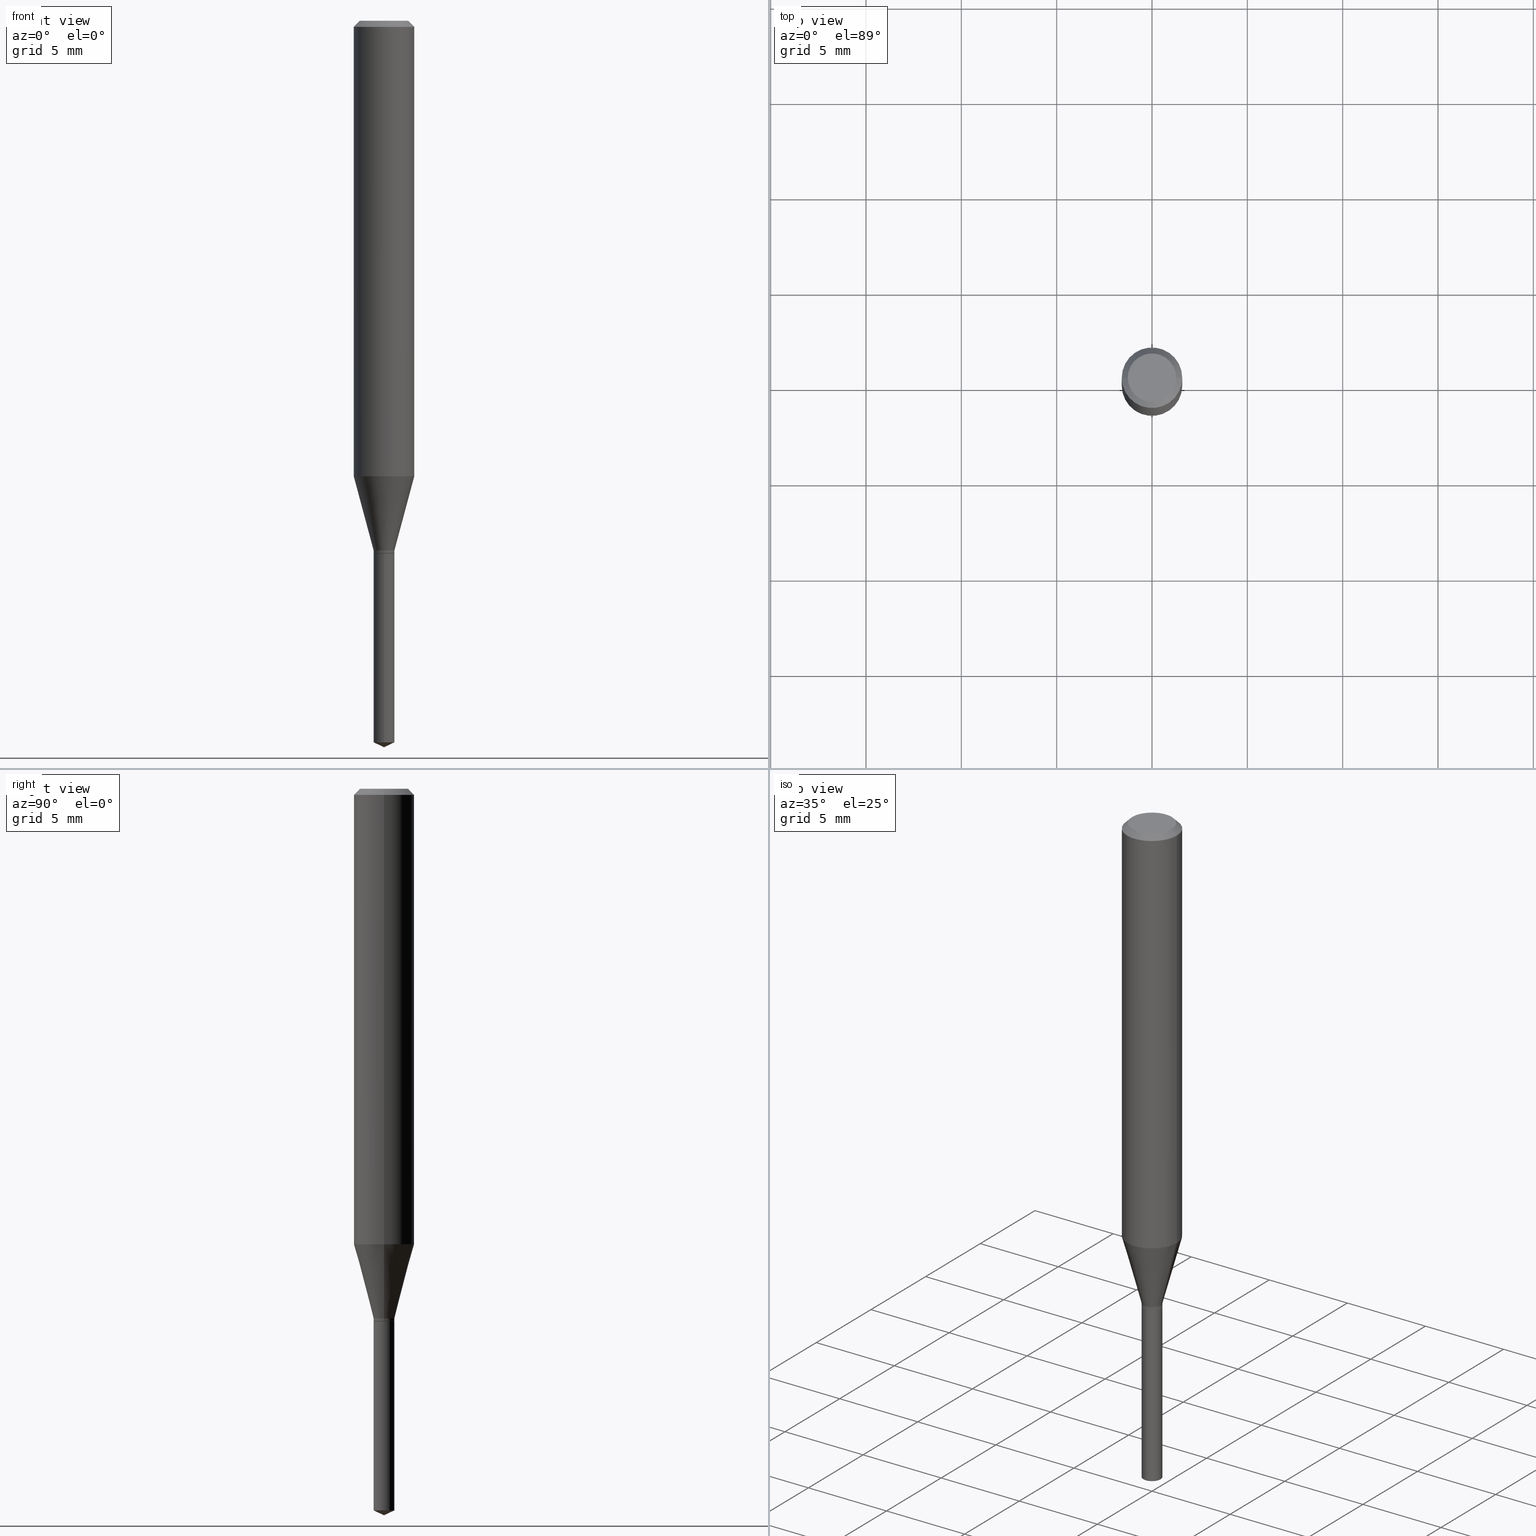
[diagram: canonical four-view strip — front | top / right | iso, engineering-drawing reading convention]
A machine part, canonical four-view strip (front | top / right | iso — engineering-drawing reading convention). The complete STEP part file that produces these views, byte-faithful:
ISO-10303-21;
HEADER;
FILE_DESCRIPTION (( 'STEP AP203' ),
    '1' );
FILE_NAME ('07156.STEP',
    '2024-04-23T19:50:09',
    ( '' ),
    ( '' ),
    'SwSTEP 2.0',
    'SolidWorks 2023',
    '' );
FILE_SCHEMA (( 'CONFIG_CONTROL_DESIGN' ));
ENDSEC;

DATA;
#1 = ORIENTED_EDGE ( 'NONE', *, *, #160, .T. ) ;
#2 = DATE_AND_TIME ( #42, #296 ) ;
#3 = CARTESIAN_POINT ( 'NONE',  ( 0.02150000000000000522, -3.989017429628293427E-15, -1.099499999999999922 ) ) ;
#4 = CONICAL_SURFACE ( 'NONE', #144, 0.02099999999999999784, 0.7853981633974184140 ) ;
#5 = CC_DESIGN_APPROVAL ( #105, ( #119 ) ) ;
#6 = EDGE_CURVE ( 'NONE', #396, #211, #80, .T. ) ;
#7 = CARTESIAN_POINT ( 'NONE',  ( 0.000000000000000000, 0.000000000000000000, 0.000000000000000000 ) ) ;
#8 = CARTESIAN_POINT ( 'NONE',  ( 0.02150000000000000175, -3.968068541595235384E-15, -1.093500000000000139 ) ) ;
#9 = ORIENTED_EDGE ( 'NONE', *, *, #22, .F. ) ;
#10 = DIRECTION ( 'NONE',  ( -6.982962677686265922E-15, -1.000000000000000000, 0.000000000000000000 ) ) ;
#11 = ORIENTED_EDGE ( 'NONE', *, *, #358, .F. ) ;
#12 = CARTESIAN_POINT ( 'NONE',  ( 0.000000000000000000, 0.000000000000000000, 0.000000000000000000 ) ) ;
#13 = MANIFOLD_SOLID_BREP ( 'Body-Move/Copy2[2]', #228 ) ;
#14 = EDGE_CURVE ( 'NONE', #439, #485, #95, .T. ) ;
#15 = CIRCLE ( 'NONE', #373, 0.02150000000000000175 ) ;
#16 = ORIENTED_EDGE ( 'NONE', *, *, #237, .F. ) ;
#17 =( GEOMETRIC_REPRESENTATION_CONTEXT ( 3 ) GLOBAL_UNCERTAINTY_ASSIGNED_CONTEXT ( ( #148 ) ) GLOBAL_UNIT_ASSIGNED_CONTEXT ( ( #326, #101, #180 ) ) REPRESENTATION_CONTEXT ( 'NONE', 'WORKASPACE' ) );
#18 = CARTESIAN_POINT ( 'NONE',  ( 3.893286209682126177E-47, -5.558580879666067980E-33, -1.592040838891559689E-18 ) ) ;
#19 = ORIENTED_EDGE ( 'NONE', *, *, #358, .T. ) ;
#20 = LINE ( 'NONE', #213, #166 ) ;
#21 = EDGE_LOOP ( 'NONE', ( #44, #201, #318, #96 ) ) ;
#22 = EDGE_CURVE ( 'NONE', #407, #169, #294, .T. ) ;
#23 = DIRECTION ( 'NONE',  ( -1.000000000000000000, 6.982962677686265922E-15, -4.876176775795935793E-29 ) ) ;
#24 = CIRCLE ( 'NONE', #155, 0.02150000000000000175 ) ;
#25 = VECTOR ( 'NONE', #45, 39.37007874015748143 ) ;
#26 =( LENGTH_UNIT ( ) NAMED_UNIT ( * ) SI_UNIT ( $, .METRE. ) );
#27 = EDGE_LOOP ( 'NONE', ( #440, #210, #359, #288 ) ) ;
#28 = EDGE_LOOP ( 'NONE', ( #103, #53, #176, #64 ) ) ;
#29 = CARTESIAN_POINT ( 'NONE',  ( 2.690015686803650369E-29, -3.840629472727460101E-15, -1.100000000000000089 ) ) ;
#30 = APPROVAL ( #150, 'UNSPECIFIED' ) ;
#31 = CONICAL_SURFACE ( 'NONE', #72, 0.06250000000000000000, 0.7853981633974452814 ) ;
#32 = AXIS2_PLACEMENT_3D ( 'NONE', #70, #133, #282 ) ;
#33 = ADVANCED_FACE ( 'NONE', ( #479 ), #276, .T. ) ;
#34 = EDGE_LOOP ( 'NONE', ( #317, #319 ) ) ;
#35 = EDGE_CURVE ( 'NONE', #283, #396, #389, .T. ) ;
#36 = LINE ( 'NONE', #187, #480 ) ;
#37 = APPROVAL_STATUS ( 'not_yet_approved' ) ;
#38 = VECTOR ( 'NONE', #43, 39.37007874015748143 ) ;
#39 = ORIENTED_EDGE ( 'NONE', *, *, #263, .F. ) ;
#40 = DIRECTION ( 'NONE',  ( -2.445468806185136597E-29, 3.491481338843145583E-15, 1.000000000000000000 ) ) ;
#41 = DATE_AND_TIME ( #381, #206 ) ;
#42 = CALENDAR_DATE ( 2024, 23, 4 ) ;
#43 = DIRECTION ( 'NONE',  ( -2.445399690415121810E-29, 3.491580316559632610E-15, 1.000000000000000000 ) ) ;
#44 = ORIENTED_EDGE ( 'NONE', *, *, #63, .T. ) ;
#45 = DIRECTION ( 'NONE',  ( -2.445468806185136877E-29, 3.491481338843145188E-15, 1.000000000000000000 ) ) ;
#46 = VECTOR ( 'NONE', #229, 39.37007874015748143 ) ;
#47 = DESIGN_CONTEXT ( 'detailed design', #121, 'design' ) ;
#48 = CARTESIAN_POINT ( 'NONE',  ( -9.260740279983036507E-28, 1.322265303911854087E-13, 37.87007874015748143 ) ) ;
#49 = PERSON_AND_ORGANIZATION ( #185, #198 ) ;
#50 = VERTEX_POINT ( 'NONE', #293 ) ;
#51 = CYLINDRICAL_SURFACE ( 'NONE', #332, 0.06250000000000005551 ) ;
#52 = EDGE_CURVE ( 'NONE', #429, #151, #346, .T. ) ;
#53 = ORIENTED_EDGE ( 'NONE', *, *, #327, .T. ) ;
#54 = FACE_OUTER_BOUND ( 'NONE', #28, .T. ) ;
#55 = AXIS2_PLACEMENT_3D ( 'NONE', #168, #118, #356 ) ;
#56 = ORIENTED_EDGE ( 'NONE', *, *, #347, .F. ) ;
#57 = AXIS2_PLACEMENT_3D ( 'NONE', #360, #107, #472 ) ;
#58 = CYLINDRICAL_SURFACE ( 'NONE', #146, 0.02150000000000000522 ) ;
#59 = VERTEX_POINT ( 'NONE', #417 ) ;
#60 = FACE_OUTER_BOUND ( 'NONE', #473, .T. ) ;
#61 = ORIENTED_EDGE ( 'NONE', *, *, #35, .F. ) ;
#62 = DIMENSIONAL_EXPONENTS ( 1.000000000000000000, 0.000000000000000000, 0.000000000000000000, 0.000000000000000000, 0.000000000000000000, 0.000000000000000000, 0.000000000000000000 ) ;
#63 = EDGE_CURVE ( 'NONE', #485, #439, #488, .T. ) ;
#64 = ORIENTED_EDGE ( 'NONE', *, *, #160, .F. ) ;
#65 = CARTESIAN_POINT ( 'NONE',  ( -0.02150000000000000522, -3.675642599853087506E-15, -1.099499999999999922 ) ) ;
#66 = ORIENTED_EDGE ( 'NONE', *, *, #327, .F. ) ;
#67 = AXIS2_PLACEMENT_3D ( 'NONE', #413, #448, #487 ) ;
#68 = AXIS2_PLACEMENT_3D ( 'NONE', #29, #253, #441 ) ;
#69 = DIRECTION ( 'NONE',  ( -2.445468806185136597E-29, 3.491481338843145583E-15, 1.000000000000000000 ) ) ;
#70 = CARTESIAN_POINT ( 'NONE',  ( 3.056836007731440539E-31, -4.364351673553960451E-17, -0.01250000000000008049 ) ) ;
#71 = CARTESIAN_POINT ( 'NONE',  ( -0.02150000000000000522, 1.527666881884215770E-16, -1.057571044404804875E-30 ) ) ;
#72 = AXIS2_PLACEMENT_3D ( 'NONE', #316, #200, #88 ) ;
#73 = DIRECTION ( 'NONE',  ( 1.000000000000000000, -6.982962677686265133E-15, 0.000000000000000000 ) ) ;
#74 = CC_DESIGN_SECURITY_CLASSIFICATION ( #97, ( #119 ) ) ;
#75 = EDGE_CURVE ( 'NONE', #485, #290, #108, .T. ) ;
#76 = APPLICATION_PROTOCOL_DEFINITION ( 'international standard', 'config_control_design', 1994, #451 ) ;
#77 = DIRECTION ( 'NONE',  ( 0.7071067811865453523, -7.319954787623248157E-15, -0.7071067811865496822 ) ) ;
#78 = PRODUCT_DEFINITION_SHAPE ( 'NONE', 'NONE',  #90 ) ;
#79 = DIRECTION ( 'NONE',  ( 1.000000000000000000, -6.982962677686267499E-15, 0.000000000000000000 ) ) ;
#80 = LINE ( 'NONE', #71, #46 ) ;
#81 = DIRECTION ( 'NONE',  ( 0.000000000000000000, 0.000000000000000000, 1.000000000000000000 ) ) ;
#82 = APPROVAL_PERSON_ORGANIZATION ( #336, #408, #266 ) ;
#83 = CALENDAR_DATE ( 2024, 23, 4 ) ;
#84 = CARTESIAN_POINT ( 'NONE',  ( -9.260740279983036507E-28, 1.322265303911854087E-13, 37.87007874015748143 ) ) ;
#85 = DATE_TIME_ROLE ( 'classification_date' ) ;
#86 = CARTESIAN_POINT ( 'NONE',  ( 0.06250000000000000000, -4.800786840909312308E-16, -0.01250000000000008049 ) ) ;
#87 = VERTEX_POINT ( 'NONE', #258 ) ;
#88 = DIRECTION ( 'NONE',  ( -1.000000000000000000, 6.982962677686266711E-15, 0.000000000000000000 ) ) ;
#89 = CIRCLE ( 'NONE', #313, 0.02150000000000000175 ) ;
#90 = PRODUCT_DEFINITION ( 'UNKNOWN', '', #119, #47 ) ;
#91 = DIRECTION ( 'NONE',  ( 1.000000000000000000, -6.982962677686265922E-15, 4.876176775795935232E-29 ) ) ;
#92 = CARTESIAN_POINT ( 'NONE',  ( -0.06250000000000000000, 3.927916506198521080E-16, -0.01250000000000008049 ) ) ;
#93 = DIRECTION ( 'NONE',  ( -2.445399690415121530E-29, 3.491580316559632610E-15, 1.000000000000000000 ) ) ;
#94 = EDGE_CURVE ( 'NONE', #151, #429, #355, .T. ) ;
#95 = CIRCLE ( 'NONE', #322, 0.06250000000000009714 ) ;
#96 = ORIENTED_EDGE ( 'NONE', *, *, #75, .F. ) ;
#97 = SECURITY_CLASSIFICATION ( '', '', #425 ) ;
#98 = CARTESIAN_POINT ( 'NONE',  ( 0.000000000000000000, 0.000000000000000000, 0.000000000000000000 ) ) ;
#99 = ADVANCED_FACE ( 'NONE', ( #339 ), #450, .T. ) ;
#100 = ORIENTED_EDGE ( 'NONE', *, *, #178, .T. ) ;
#101 =( NAMED_UNIT ( * ) PLANE_ANGLE_UNIT ( ) SI_UNIT ( $, .RADIAN. ) );
#102 = ORIENTED_EDGE ( 'NONE', *, *, #312, .F. ) ;
#103 = ORIENTED_EDGE ( 'NONE', *, *, #291, .F. ) ;
#104 = EDGE_LOOP ( 'NONE', ( #19, #1 ) ) ;
#105 = APPROVAL ( #268, 'UNSPECIFIED' ) ;
#106 = AXIS2_PLACEMENT_3D ( 'NONE', #424, #314, #91 ) ;
#107 = DIRECTION ( 'NONE',  ( -2.445468806185136597E-29, 3.491481338843145583E-15, 1.000000000000000000 ) ) ;
#108 = LINE ( 'NONE', #109, #410 ) ;
#109 = CARTESIAN_POINT ( 'NONE',  ( 0.06250000000000005551, -4.364351673553920638E-16, 3.047610484872462323E-30 ) ) ;
#110 = CARTESIAN_POINT ( 'NONE',  ( -0.06250000000000005551, 4.440892098500630106E-16, -3.074334431409318916E-30 ) ) ;
#111 = EDGE_CURVE ( 'NONE', #238, #211, #15, .T. ) ;
#112 = AXIS2_PLACEMENT_3D ( 'NONE', #265, #380, #113 ) ;
#113 = DIRECTION ( 'NONE',  ( 1.000000000000000000, -6.982962677686265133E-15, 0.000000000000000000 ) ) ;
#114 = PLANE ( 'NONE',  #134 ) ;
#115 = EDGE_CURVE ( 'NONE', #211, #439, #36, .T. ) ;
#116 = PERSON_AND_ORGANIZATION ( #185, #198 ) ;
#117 = CC_DESIGN_PERSON_AND_ORGANIZATION_ASSIGNMENT ( #193, #120, ( #97 ) ) ;
#118 = DIRECTION ( 'NONE',  ( -2.445468806185136597E-29, 3.491481338843145583E-15, 1.000000000000000000 ) ) ;
#119 = PRODUCT_DEFINITION_FORMATION_WITH_SPECIFIED_SOURCE ( 'ANY', '', #421, .NOT_KNOWN. ) ;
#120 = PERSON_AND_ORGANIZATION_ROLE ( 'classification_officer' ) ;
#121 = APPLICATION_CONTEXT ( 'configuration controlled 3d designs of mechanical parts and assemblies' ) ;
#122 = FACE_OUTER_BOUND ( 'NONE', #254, .T. ) ;
#123 = VERTEX_POINT ( 'NONE', #337 ) ;
#124 = DIRECTION ( 'NONE',  ( -2.445468806185136597E-29, 3.491481338843145583E-15, 1.000000000000000000 ) ) ;
#125 = EDGE_CURVE ( 'NONE', #211, #238, #222, .T. ) ;
#126 = ORIENTED_EDGE ( 'NONE', *, *, #52, .T. ) ;
#127 = CARTESIAN_POINT ( 'NONE',  ( -0.06250000000000000000, -1.219577062650251305E-15, -0.01250000000000008049 ) ) ;
#128 = VECTOR ( 'NONE', #77, 39.37007874015748143 ) ;
#129 = AXIS2_PLACEMENT_3D ( 'NONE', #292, #93, #320 ) ;
#130 = FACE_OUTER_BOUND ( 'NONE', #403, .T. ) ;
#131 = CYLINDRICAL_SURFACE ( 'NONE', #68, 0.02150000000000000175 ) ;
#132 = EDGE_LOOP ( 'NONE', ( #56, #126, #386, #16 ) ) ;
#133 = DIRECTION ( 'NONE',  ( -2.445468806185136597E-29, 3.491481338843145583E-15, 1.000000000000000000 ) ) ;
#134 = AXIS2_PLACEMENT_3D ( 'NONE', #460, #345, #422 ) ;
#135 = CARTESIAN_POINT ( 'NONE',  ( -0.06250000000000009714, -2.839599818415026848E-15, -0.9404859168896763100 ) ) ;
#136 = LINE ( 'NONE', #208, #175 ) ;
#137 = ORIENTED_EDGE ( 'NONE', *, *, #111, .T. ) ;
#138 = FACE_OUTER_BOUND ( 'NONE', #34, .T. ) ;
#139 = CONICAL_SURFACE ( 'NONE', #444, 84.42940631927278616, 1.134464013796308901 ) ;
#140 = VECTOR ( 'NONE', #243, 39.37007874015748143 ) ;
#141 = CARTESIAN_POINT ( 'NONE',  ( 2.299928972410130488E-29, -3.283689028265090253E-15, -0.9404859168896763100 ) ) ;
#142 = DIRECTION ( 'NONE',  ( 1.000000000000000000, -6.982962677686267499E-15, 0.000000000000000000 ) ) ;
#143 = LINE ( 'NONE', #110, #428 ) ;
#144 = AXIS2_PLACEMENT_3D ( 'NONE', #335, #232, #152 ) ;
#145 = DIRECTION ( 'NONE',  ( -2.445468806185136597E-29, 3.491481338843145583E-15, 1.000000000000000000 ) ) ;
#146 = AXIS2_PLACEMENT_3D ( 'NONE', #98, #443, #181 ) ;
#147 = CARTESIAN_POINT ( 'NONE',  ( 0.06250000000000000000, -4.724246415962602840E-16, -0.01250000000000008049 ) ) ;
#148 = UNCERTAINTY_MEASURE_WITH_UNIT (LENGTH_MEASURE( 1.000000000000000082E-05 ), #326, 'distance_accuracy_value', 'NONE');
#149 = DIRECTION ( 'NONE',  ( -0.2588190451025214611, 5.211531920934551042E-15, 0.9659258262890682012 ) ) ;
#150 = APPROVAL_STATUS ( 'not_yet_approved' ) ;
#151 = VERTEX_POINT ( 'NONE', #372 ) ;
#152 = DIRECTION ( 'NONE',  ( 1.000000000000000000, -6.982962677686263555E-15, 0.000000000000000000 ) ) ;
#153 = PERSON_AND_ORGANIZATION_ROLE ( 'creator' ) ;
#154 = LINE ( 'NONE', #305, #140 ) ;
#155 = AXIS2_PLACEMENT_3D ( 'NONE', #221, #267, #224 ) ;
#156 = CC_DESIGN_APPROVAL ( #30, ( #97 ) ) ;
#157 = APPROVAL_DATE_TIME ( #455, #105 ) ;
#158 = VERTEX_POINT ( 'NONE', #376 ) ;
#159 = CARTESIAN_POINT ( 'NONE',  ( 0.02150000000000000522, -1.501336975702547550E-16, 1.048378006796126378E-30 ) ) ;
#160 = EDGE_CURVE ( 'NONE', #123, #87, #24, .T. ) ;
#161 = PRODUCT_RELATED_PRODUCT_CATEGORY ( 'detail', '', ( #421 ) ) ;
#162 = ORIENTED_EDGE ( 'NONE', *, *, #347, .T. ) ;
#163 = CARTESIAN_POINT ( 'NONE',  ( 1.527666881884484230E-16, 0.02149999999999615760, -1.100000000000000089 ) ) ;
#164 = CALENDAR_DATE ( 2024, 23, 4 ) ;
#165 = DIRECTION ( 'NONE',  ( -2.445468806185136597E-29, 3.491481338843145583E-15, 1.000000000000000000 ) ) ;
#166 = VECTOR ( 'NONE', #209, 39.37007874015748143 ) ;
#167 = EDGE_LOOP ( 'NONE', ( #179, #471 ) ) ;
#168 = CARTESIAN_POINT ( 'NONE',  ( 2.688792952400557567E-29, -3.838883732058038598E-15, -1.099499999999999922 ) ) ;
#169 = VERTEX_POINT ( 'NONE', #419 ) ;
#170 = ADVANCED_FACE ( 'NONE', ( #184 ), #4, .T. ) ;
#171 = ORIENTED_EDGE ( 'NONE', *, *, #352, .T. ) ;
#172 = ORIENTED_EDGE ( 'NONE', *, *, #263, .T. ) ;
#173 = FACE_OUTER_BOUND ( 'NONE', #218, .T. ) ;
#174 = AXIS2_PLACEMENT_3D ( 'NONE', #297, #299, #73 ) ;
#175 = VECTOR ( 'NONE', #217, 39.37007874015748854 ) ;
#176 = ORIENTED_EDGE ( 'NONE', *, *, #478, .T. ) ;
#177 = LENGTH_MEASURE_WITH_UNIT ( LENGTH_MEASURE( 0.02539999999999999897 ), #26 );
#178 = EDGE_CURVE ( 'NONE', #50, #169, #89, .T. ) ;
#179 = ORIENTED_EDGE ( 'NONE', *, *, #94, .F. ) ;
#180 =( NAMED_UNIT ( * ) SI_UNIT ( $, .STERADIAN. ) SOLID_ANGLE_UNIT ( ) );
#181 = DIRECTION ( 'NONE',  ( 1.000000000000000000, -6.982962677686265922E-15, 4.876176775795935232E-29 ) ) ;
#182 = AXIS2_PLACEMENT_3D ( 'NONE', #7, #81, #307 ) ;
#183 = ADVANCED_FACE ( 'NONE', ( #259 ), #214, .T. ) ;
#184 = FACE_OUTER_BOUND ( 'NONE', #442, .T. ) ;
#185 = PERSON ( 'UNSPECIFIED', 'UNSPECIFIED', 'UNSPECIFIED', ('UNSPECIFIED'), ('UNSPECIFIED'), ('UNSPECIFIED') ) ;
#186 = APPLICATION_PROTOCOL_DEFINITION ( 'international standard', 'config_control_design', 1994, #121 ) ;
#187 = CARTESIAN_POINT ( 'NONE',  ( -0.02150000000000000175, -3.665168155836558485E-15, -1.093500000000000139 ) ) ;
#188 = EDGE_CURVE ( 'NONE', #439, #363, #143, .T. ) ;
#189 = VECTOR ( 'NONE', #333, 39.37007874015748854 ) ;
#190 = DIRECTION ( 'NONE',  ( -2.445468806185136597E-29, 3.491481338843145583E-15, 1.000000000000000000 ) ) ;
#191 = CONICAL_SURFACE ( 'NONE', #481, 84.42940631927278616, 1.134464013796308901 ) ;
#192 = COORDINATED_UNIVERSAL_TIME_OFFSET ( 5, 0, .BEHIND. ) ;
#193 = PERSON_AND_ORGANIZATION ( #185, #198 ) ;
#194 = CARTESIAN_POINT ( 'NONE',  ( -0.02150000000000000175, -3.675642599853087506E-15, -1.093500000000000139 ) ) ;
#195 = ORIENTED_EDGE ( 'NONE', *, *, #196, .F. ) ;
#196 = EDGE_CURVE ( 'NONE', #158, #290, #295, .T. ) ;
#197 = DIRECTION ( 'NONE',  ( -0.7071067811865263675, 7.493145998870278430E-15, 0.7071067811865686670 ) ) ;
#198 = ORGANIZATION ( 'UNSPECIFIED', 'UNSPECIFIED', '' ) ;
#199 = PERSON_AND_ORGANIZATION ( #185, #198 ) ;
#200 = DIRECTION ( 'NONE',  ( 2.445468806185136597E-29, -3.491481338843145583E-15, -1.000000000000000000 ) ) ;
#201 = ORIENTED_EDGE ( 'NONE', *, *, #188, .T. ) ;
#202 = LINE ( 'NONE', #311, #357 ) ;
#203 = ADVANCED_FACE ( 'NONE', ( #452 ), #114, .F. ) ;
#204 = DIRECTION ( 'NONE',  ( -2.445399690415121530E-29, 3.491580316559632610E-15, 1.000000000000000000 ) ) ;
#205 = CIRCLE ( 'NONE', #55, 0.02150000000000000522 ) ;
#206 = LOCAL_TIME ( 15, 50, 9.000000000000000000, #231 ) ;
#207 = EDGE_LOOP ( 'NONE', ( #394, #361, #324, #102 ) ) ;
#208 = CARTESIAN_POINT ( 'NONE',  ( 3.668099535622682155E-29, -5.237370474839448718E-15, -1.500000000000000222 ) ) ;
#209 = DIRECTION ( 'NONE',  ( -2.445399690415121810E-29, 3.491580316559632610E-15, 1.000000000000000000 ) ) ;
#210 = ORIENTED_EDGE ( 'NONE', *, *, #196, .T. ) ;
#211 = VERTEX_POINT ( 'NONE', #194 ) ;
#212 = ADVANCED_FACE ( 'NONE', ( #236 ), #31, .T. ) ;
#213 = CARTESIAN_POINT ( 'NONE',  ( -1.501336975702278351E-16, -0.02150000000000384243, -1.099999999999999867 ) ) ;
#214 = CONICAL_SURFACE ( 'NONE', #67, 0.02099999999999999784, 0.7853981633974184140 ) ;
#215 = LOCAL_TIME ( 15, 50, 9.000000000000000000, #340 ) ;
#216 = ORIENTED_EDGE ( 'NONE', *, *, #125, .T. ) ;
#217 = DIRECTION ( 'NONE',  ( -6.328713451373352024E-15, -0.9063077870366461619, 0.4226182617407073239 ) ) ;
#218 = EDGE_LOOP ( 'NONE', ( #465, #251, #328, #248 ) ) ;
#219 = CARTESIAN_POINT ( 'NONE',  ( -0.02099999999999999784, -3.688766271043727729E-15, -1.100000000000000089 ) ) ;
#220 = ADVANCED_FACE ( 'NONE', ( #130 ), #139, .T. ) ;
#221 = CARTESIAN_POINT ( 'NONE',  ( 2.690015686803650369E-29, -3.840629472727460101E-15, -1.100000000000000089 ) ) ;
#222 = CIRCLE ( 'NONE', #174, 0.02150000000000000175 ) ;
#223 = DIRECTION ( 'NONE',  ( -2.445468806185136877E-29, 3.491481338843145188E-15, 1.000000000000000000 ) ) ;
#224 = DIRECTION ( 'NONE',  ( -6.982962677686265922E-15, -1.000000000000000000, 6.353134868986658336E-15 ) ) ;
#225 = MECHANICAL_CONTEXT ( 'NONE', #451, 'mechanical' ) ;
#226 = DIRECTION ( 'NONE',  ( -2.445468806185136597E-29, 3.491481338843145583E-15, 1.000000000000000000 ) ) ;
#227 = APPROVAL_DATE_TIME ( #234, #30 ) ;
#228 = CLOSED_SHELL ( 'NONE', ( #170, #212, #482, #446, #321, #402, #33, #365, #99, #476, #433, #183 ) ) ;
#229 = DIRECTION ( 'NONE',  ( -2.445468806185136877E-29, 3.491481338843145188E-15, 1.000000000000000000 ) ) ;
#230 = AXIS2_PLACEMENT_3D ( 'NONE', #404, #411, #249 ) ;
#231 = COORDINATED_UNIVERSAL_TIME_OFFSET ( 5, 0, .BEHIND. ) ;
#232 = DIRECTION ( 'NONE',  ( -2.445468806185136597E-29, 3.491481338843145583E-15, 1.000000000000000000 ) ) ;
#233 = DIRECTION ( 'NONE',  ( -6.982962677686268288E-15, -1.000000000000000000, 3.520397390770518557E-15 ) ) ;
#234 = DATE_AND_TIME ( #83, #489 ) ;
#235 = ORIENTED_EDGE ( 'NONE', *, *, #111, .F. ) ;
#236 = FACE_OUTER_BOUND ( 'NONE', #27, .T. ) ;
#237 = EDGE_CURVE ( 'NONE', #396, #283, #205, .T. ) ;
#238 = VERTEX_POINT ( 'NONE', #385 ) ;
#239 = AXIS2_PLACEMENT_3D ( 'NONE', #298, #454, #490 ) ;
#240 = DIRECTION ( 'NONE',  ( -2.445399690415121530E-29, 3.491580316559632610E-15, 1.000000000000000000 ) ) ;
#241 = CIRCLE ( 'NONE', #32, 0.06250000000000000000 ) ;
#242 = ORIENTED_EDGE ( 'NONE', *, *, #22, .T. ) ;
#243 = DIRECTION ( 'NONE',  ( 0.7071067811865263675, -2.468850131082035391E-15, 0.7071067811865686670 ) ) ;
#244 = DIRECTION ( 'NONE',  ( -6.982962677686268288E-15, -1.000000000000000000, 3.520397390770518557E-15 ) ) ;
#245 = CC_DESIGN_DATE_AND_TIME_ASSIGNMENT ( #302, #85, ( #97 ) ) ;
#246 = CARTESIAN_POINT ( 'NONE',  ( 0.000000000000000000, 0.000000000000000000, 0.000000000000000000 ) ) ;
#247 = CIRCLE ( 'NONE', #374, 0.02150000000000000175 ) ;
#248 = ORIENTED_EDGE ( 'NONE', *, *, #125, .F. ) ;
#249 = DIRECTION ( 'NONE',  ( 1.000000000000000000, -6.982962677686265922E-15, 4.876176775795935793E-29 ) ) ;
#250 = EDGE_CURVE ( 'NONE', #158, #59, #331, .T. ) ;
#251 = ORIENTED_EDGE ( 'NONE', *, *, #237, .T. ) ;
#252 = ORIENTED_EDGE ( 'NONE', *, *, #35, .T. ) ;
#253 = DIRECTION ( 'NONE',  ( -2.445399690415121530E-29, 3.491580316559632610E-15, 1.000000000000000000 ) ) ;
#254 = EDGE_LOOP ( 'NONE', ( #252, #353, #235, #390 ) ) ;
#255 = AXIS2_PLACEMENT_3D ( 'NONE', #260, #190, #264 ) ;
#256 = ORIENTED_EDGE ( 'NONE', *, *, #312, .T. ) ;
#257 = FACE_OUTER_BOUND ( 'NONE', #468, .T. ) ;
#258 = CARTESIAN_POINT ( 'NONE',  ( -1.501336975702278351E-16, -0.02150000000000384243, -1.099999999999999867 ) ) ;
#259 = FACE_OUTER_BOUND ( 'NONE', #132, .T. ) ;
#260 = CARTESIAN_POINT ( 'NONE',  ( 2.690015686803650369E-29, -3.840629472727460101E-15, -1.100000000000000089 ) ) ;
#261 = CLOSED_SHELL ( 'NONE', ( #453, #287, #220, #391, #203 ) ) ;
#262 = CIRCLE ( 'NONE', #269, 0.02150000000000000175 ) ;
#263 = EDGE_CURVE ( 'NONE', #238, #485, #431, .T. ) ;
#264 = DIRECTION ( 'NONE',  ( 1.000000000000000000, -6.982962677686263555E-15, 0.000000000000000000 ) ) ;
#265 = CARTESIAN_POINT ( 'NONE',  ( 2.674120139563447313E-29, -3.817934844024980555E-15, -1.093500000000000139 ) ) ;
#266 = APPROVAL_ROLE ( '' ) ;
#267 = DIRECTION ( 'NONE',  ( -2.445399690415121530E-29, 3.491580316559632610E-15, 1.000000000000000000 ) ) ;
#268 = APPROVAL_STATUS ( 'not_yet_approved' ) ;
#269 = AXIS2_PLACEMENT_3D ( 'NONE', #274, #427, #393 ) ;
#270 = FACE_OUTER_BOUND ( 'NONE', #273, .T. ) ;
#271 = APPROVAL_ROLE ( '' ) ;
#272 = DIRECTION ( 'NONE',  ( 0.2588190451025214611, 1.565188264969621573E-15, 0.9659258262890682012 ) ) ;
#273 = EDGE_LOOP ( 'NONE', ( #325, #242, #370 ) ) ;
#274 = CARTESIAN_POINT ( 'NONE',  ( 2.690015686803650369E-29, -3.840629472727460101E-15, -1.100000000000000089 ) ) ;
#275 = ORIENTED_EDGE ( 'NONE', *, *, #463, .T. ) ;
#276 = CONICAL_SURFACE ( 'NONE', #112, 0.02150000000000000175, 0.2617993877991501295 ) ;
#277 = FACE_OUTER_BOUND ( 'NONE', #207, .T. ) ;
#278 = COORDINATED_UNIVERSAL_TIME_OFFSET ( 5, 0, .BEHIND. ) ;
#279 = CC_DESIGN_DATE_AND_TIME_ASSIGNMENT ( #2, #423, ( #90 ) ) ;
#280 = LINE ( 'NONE', #159, #25 ) ;
#281 = ORIENTED_EDGE ( 'NONE', *, *, #478, .F. ) ;
#282 = DIRECTION ( 'NONE',  ( 1.000000000000000000, -6.982962677686266711E-15, 0.000000000000000000 ) ) ;
#283 = VERTEX_POINT ( 'NONE', #3 ) ;
#284 = FACE_OUTER_BOUND ( 'NONE', #21, .T. ) ;
#285 = AXIS2_PLACEMENT_3D ( 'NONE', #141, #447, #79 ) ;
#286 = ORIENTED_EDGE ( 'NONE', *, *, #94, .T. ) ;
#287 = ADVANCED_FACE ( 'NONE', ( #270 ), #191, .T. ) ;
#288 = ORIENTED_EDGE ( 'NONE', *, *, #352, .F. ) ;
#289 = CARTESIAN_POINT ( 'NONE',  ( 2.674120139563447313E-29, -3.817934844024980555E-15, -1.093500000000000139 ) ) ;
#290 = VERTEX_POINT ( 'NONE', #86 ) ;
#291 = EDGE_CURVE ( 'NONE', #169, #123, #434, .T. ) ;
#292 = CARTESIAN_POINT ( 'NONE',  ( 2.690015686803650369E-29, -3.840629472727460101E-15, -1.100000000000000089 ) ) ;
#293 = CARTESIAN_POINT ( 'NONE',  ( -1.501336975702182948E-16, -0.02150000000000520939, -1.489974385349667418 ) ) ;
#294 = LINE ( 'NONE', #415, #189 ) ;
#295 = LINE ( 'NONE', #147, #128 ) ;
#296 = LOCAL_TIME ( 15, 50, 9.000000000000000000, #192 ) ;
#297 = CARTESIAN_POINT ( 'NONE',  ( 2.674120139563447313E-29, -3.817934844024980555E-15, -1.093500000000000139 ) ) ;
#298 = CARTESIAN_POINT ( 'NONE',  ( 3.056836007731440539E-31, -4.364351673553960451E-17, -0.01250000000000008049 ) ) ;
#299 = DIRECTION ( 'NONE',  ( -2.445468806185136597E-29, 3.491481338843145583E-15, 1.000000000000000000 ) ) ;
#300 = APPROVAL_ROLE ( '' ) ;
#301 = EDGE_CURVE ( 'NONE', #151, #283, #154, .T. ) ;
#302 = DATE_AND_TIME ( #344, #215 ) ;
#303 = AXIS2_PLACEMENT_3D ( 'NONE', #483, #40, #330 ) ;
#304 = LOCAL_TIME ( 15, 50, 9.000000000000000000, #278 ) ;
#305 = CARTESIAN_POINT ( 'NONE',  ( 0.02099999999999999784, -3.987271688958871923E-15, -1.100000000000000089 ) ) ;
#306 = ORIENTED_EDGE ( 'NONE', *, *, #414, .F. ) ;
#307 = DIRECTION ( 'NONE',  ( 1.000000000000000000, 0.000000000000000000, 0.000000000000000000 ) ) ;
#308 = DIRECTION ( 'NONE',  ( -0.7071067811865453523, 2.468850131082234184E-15, -0.7071067811865496822 ) ) ;
#309 = PERSON_AND_ORGANIZATION_ROLE ( 'design_supplier' ) ;
#310 = ORIENTED_EDGE ( 'NONE', *, *, #115, .F. ) ;
#311 = CARTESIAN_POINT ( 'NONE',  ( -0.02099999999999999784, -3.691415498217838930E-15, -1.100000000000000089 ) ) ;
#312 = EDGE_CURVE ( 'NONE', #363, #290, #475, .T. ) ;
#313 = AXIS2_PLACEMENT_3D ( 'NONE', #375, #382, #416 ) ;
#314 = DIRECTION ( 'NONE',  ( -2.445468806185136597E-29, 3.491481338843145583E-15, 1.000000000000000000 ) ) ;
#315 = VECTOR ( 'NONE', #308, 39.37007874015748143 ) ;
#316 = CARTESIAN_POINT ( 'NONE',  ( 3.056836007731440539E-31, -4.364351673553960451E-17, -0.01250000000000008049 ) ) ;
#317 = ORIENTED_EDGE ( 'NONE', *, *, #414, .T. ) ;
#318 = ORIENTED_EDGE ( 'NONE', *, *, #469, .F. ) ;
#319 = ORIENTED_EDGE ( 'NONE', *, *, #250, .T. ) ;
#320 = DIRECTION ( 'NONE',  ( -6.982962677686265922E-15, -1.000000000000000000, 6.353134868986658336E-15 ) ) ;
#321 = ADVANCED_FACE ( 'NONE', ( #122 ), #464, .T. ) ;
#322 = AXIS2_PLACEMENT_3D ( 'NONE', #445, #145, #142 ) ;
#323 = CONICAL_SURFACE ( 'NONE', #379, 0.02150000000000000175, 0.2617993877991501295 ) ;
#324 = ORIENTED_EDGE ( 'NONE', *, *, #75, .T. ) ;
#325 = ORIENTED_EDGE ( 'NONE', *, *, #463, .F. ) ;
#326 =( CONVERSION_BASED_UNIT ( 'INCH', #177 ) LENGTH_UNIT ( ) NAMED_UNIT ( #62 ) );
#327 = EDGE_CURVE ( 'NONE', #169, #50, #247, .T. ) ;
#328 = ORIENTED_EDGE ( 'NONE', *, *, #341, .T. ) ;
#329 = CC_DESIGN_PERSON_AND_ORGANIZATION_ASSIGNMENT ( #199, #309, ( #119 ) ) ;
#330 = DIRECTION ( 'NONE',  ( 1.000000000000000000, -6.982962677686263555E-15, 0.000000000000000000 ) ) ;
#331 = CIRCLE ( 'NONE', #399, 0.04999999999999999584 ) ;
#332 = AXIS2_PLACEMENT_3D ( 'NONE', #12, #165, #397 ) ;
#333 = DIRECTION ( 'NONE',  ( 6.439704144417007476E-15, 0.9063077870366490485, 0.4226182617407009956 ) ) ;
#334 = DIRECTION ( 'NONE',  ( -2.445468806185136597E-29, 3.491481338843145583E-15, 1.000000000000000000 ) ) ;
#335 = CARTESIAN_POINT ( 'NONE',  ( 2.690015686803650369E-29, -3.840629472727460101E-15, -1.100000000000000089 ) ) ;
#336 = PERSON_AND_ORGANIZATION ( #185, #198 ) ;
#337 = CARTESIAN_POINT ( 'NONE',  ( 1.527666881884579879E-16, 0.02149999999999615760, -1.100000000000000089 ) ) ;
#338 = AXIS2_PLACEMENT_3D ( 'NONE', #435, #409, #23 ) ;
#339 = FACE_OUTER_BOUND ( 'NONE', #461, .T. ) ;
#340 = COORDINATED_UNIVERSAL_TIME_OFFSET ( 5, 0, .BEHIND. ) ;
#341 = EDGE_CURVE ( 'NONE', #283, #238, #280, .T. ) ;
#342 = MANIFOLD_SOLID_BREP ( 'Body-Move/Copy2[1]', #261 ) ;
#343 = APPROVAL_DATE_TIME ( #41, #408 ) ;
#344 = CALENDAR_DATE ( 2024, 23, 4 ) ;
#345 = DIRECTION ( 'NONE',  ( 2.445399690415121250E-29, -3.491580316559632610E-15, -1.000000000000000000 ) ) ;
#346 = CIRCLE ( 'NONE', #255, 0.02099999999999999784 ) ;
#347 = EDGE_CURVE ( 'NONE', #429, #396, #202, .T. ) ;
#348 = DIRECTION ( 'NONE',  ( 1.000000000000000000, -6.982962677686265922E-15, 4.875957971899673662E-29 ) ) ;
#349 = SHAPE_DEFINITION_REPRESENTATION ( #78, #388 ) ;
#350 = ORIENTED_EDGE ( 'NONE', *, *, #301, .F. ) ;
#351 = CARTESIAN_POINT ( 'NONE',  ( 3.056836007731440539E-31, -4.364351673553960451E-17, -0.01250000000000008049 ) ) ;
#352 = EDGE_CURVE ( 'NONE', #59, #363, #354, .T. ) ;
#353 = ORIENTED_EDGE ( 'NONE', *, *, #6, .T. ) ;
#354 = LINE ( 'NONE', #92, #315 ) ;
#355 = CIRCLE ( 'NONE', #366, 0.02099999999999999784 ) ;
#356 = DIRECTION ( 'NONE',  ( 1.000000000000000000, -6.982962677686263555E-15, 0.000000000000000000 ) ) ;
#357 = VECTOR ( 'NONE', #197, 39.37007874015748143 ) ;
#358 = EDGE_CURVE ( 'NONE', #87, #123, #262, .T. ) ;
#359 = ORIENTED_EDGE ( 'NONE', *, *, #469, .T. ) ;
#360 = CARTESIAN_POINT ( 'NONE',  ( 3.893286209682126177E-47, -5.558580879666067980E-33, -1.592040838891559689E-18 ) ) ;
#361 = ORIENTED_EDGE ( 'NONE', *, *, #14, .T. ) ;
#362 = CYLINDRICAL_SURFACE ( 'NONE', #392, 0.06250000000000005551 ) ;
#363 = VERTEX_POINT ( 'NONE', #127 ) ;
#364 = DIRECTION ( 'NONE',  ( 1.000000000000000000, -6.982962677686266711E-15, 4.876176775795935232E-29 ) ) ;
#365 = ADVANCED_FACE ( 'NONE', ( #277 ), #51, .T. ) ;
#366 = AXIS2_PLACEMENT_3D ( 'NONE', #412, #226, #377 ) ;
#367 = ORIENTED_EDGE ( 'NONE', *, *, #63, .F. ) ;
#368 = FACE_OUTER_BOUND ( 'NONE', #167, .T. ) ;
#369 = CC_DESIGN_PERSON_AND_ORGANIZATION_ASSIGNMENT ( #486, #378, ( #421 ) ) ;
#370 = ORIENTED_EDGE ( 'NONE', *, *, #178, .F. ) ;
#371 = DIRECTION ( 'NONE',  ( 1.000000000000000000, -6.982962677686265133E-15, 0.000000000000000000 ) ) ;
#372 = CARTESIAN_POINT ( 'NONE',  ( 0.02099999999999999784, -3.987271688958871923E-15, -1.100000000000000089 ) ) ;
#373 = AXIS2_PLACEMENT_3D ( 'NONE', #456, #334, #484 ) ;
#374 = AXIS2_PLACEMENT_3D ( 'NONE', #467, #387, #10 ) ;
#375 = CARTESIAN_POINT ( 'NONE',  ( 3.643658928007554120E-29, -5.202256360576801008E-15, -1.489974385349667418 ) ) ;
#376 = CARTESIAN_POINT ( 'NONE',  ( 0.04999999999999999584, -4.077247707424184212E-16, -1.592040838888913461E-18 ) ) ;
#377 = DIRECTION ( 'NONE',  ( 1.000000000000000000, -6.982962677686263555E-15, 0.000000000000000000 ) ) ;
#378 = PERSON_AND_ORGANIZATION_ROLE ( 'design_owner' ) ;
#379 = AXIS2_PLACEMENT_3D ( 'NONE', #289, #69, #371 ) ;
#380 = DIRECTION ( 'NONE',  ( -2.445468806185136597E-29, 3.491481338843145583E-15, 1.000000000000000000 ) ) ;
#381 = CALENDAR_DATE ( 2024, 23, 4 ) ;
#382 = DIRECTION ( 'NONE',  ( -2.445399690415121530E-29, 3.491580316559632610E-15, 1.000000000000000000 ) ) ;
#383 = CC_DESIGN_PERSON_AND_ORGANIZATION_ASSIGNMENT ( #384, #457, ( #90 ) ) ;
#384 = PERSON_AND_ORGANIZATION ( #185, #198 ) ;
#385 = CARTESIAN_POINT ( 'NONE',  ( 0.02150000000000000175, -3.968068541595235384E-15, -1.093500000000000139 ) ) ;
#386 = ORIENTED_EDGE ( 'NONE', *, *, #301, .T. ) ;
#387 = DIRECTION ( 'NONE',  ( -2.445399690415121530E-29, 3.491580316559632610E-15, 1.000000000000000000 ) ) ;
#388 = ADVANCED_BREP_SHAPE_REPRESENTATION ( '07156', ( #342, #13, #182 ), #17 ) ;
#389 = CIRCLE ( 'NONE', #303, 0.02150000000000000522 ) ;
#390 = ORIENTED_EDGE ( 'NONE', *, *, #341, .F. ) ;
#391 = ADVANCED_FACE ( 'NONE', ( #54 ), #477, .T. ) ;
#392 = AXIS2_PLACEMENT_3D ( 'NONE', #246, #400, #364 ) ;
#393 = DIRECTION ( 'NONE',  ( -6.982962677686265922E-15, -1.000000000000000000, 6.353134868986658336E-15 ) ) ;
#394 = ORIENTED_EDGE ( 'NONE', *, *, #188, .F. ) ;
#395 = DIRECTION ( 'NONE',  ( 1.000000000000000000, -6.982962677686266711E-15, 0.000000000000000000 ) ) ;
#396 = VERTEX_POINT ( 'NONE', #65 ) ;
#397 = DIRECTION ( 'NONE',  ( 1.000000000000000000, -6.982962677686266711E-15, 4.876176775795935232E-29 ) ) ;
#398 = ORIENTED_EDGE ( 'NONE', *, *, #14, .F. ) ;
#399 = AXIS2_PLACEMENT_3D ( 'NONE', #18, #124, #348 ) ;
#400 = DIRECTION ( 'NONE',  ( -2.445468806185136597E-29, 3.491481338843145583E-15, 1.000000000000000000 ) ) ;
#401 = CC_DESIGN_APPROVAL ( #408, ( #90 ) ) ;
#402 = ADVANCED_FACE ( 'NONE', ( #173 ), #58, .T. ) ;
#403 = EDGE_LOOP ( 'NONE', ( #9, #275, #66 ) ) ;
#404 = CARTESIAN_POINT ( 'NONE',  ( 2.690015686803650369E-29, -3.840629472727460101E-15, -1.100000000000000089 ) ) ;
#405 = ORIENTED_EDGE ( 'NONE', *, *, #291, .T. ) ;
#406 = PLANE ( 'NONE',  #338 ) ;
#407 = VERTEX_POINT ( 'NONE', #474 ) ;
#408 = APPROVAL ( #37, 'UNSPECIFIED' ) ;
#409 = DIRECTION ( 'NONE',  ( 2.438088387897960049E-29, -3.491481338843145188E-15, -1.000000000000000000 ) ) ;
#410 = VECTOR ( 'NONE', #223, 39.37007874015748143 ) ;
#411 = DIRECTION ( 'NONE',  ( -2.438088387897960049E-29, 3.491481338843145188E-15, 1.000000000000000000 ) ) ;
#412 = CARTESIAN_POINT ( 'NONE',  ( 2.690015686803650369E-29, -3.840629472727460101E-15, -1.100000000000000089 ) ) ;
#413 = CARTESIAN_POINT ( 'NONE',  ( 2.690015686803650369E-29, -3.840629472727460101E-15, -1.100000000000000089 ) ) ;
#414 = EDGE_CURVE ( 'NONE', #59, #158, #430, .T. ) ;
#415 = CARTESIAN_POINT ( 'NONE',  ( 3.668252923656895710E-29, -5.237152723863177100E-15, -1.500000000000000222 ) ) ;
#416 = DIRECTION ( 'NONE',  ( -6.982962677686265922E-15, -1.000000000000000000, 0.000000000000000000 ) ) ;
#417 = CARTESIAN_POINT ( 'NONE',  ( -0.04999999999999999584, 3.709698922520826725E-16, -1.592040838894077649E-18 ) ) ;
#418 = CC_DESIGN_PERSON_AND_ORGANIZATION_ASSIGNMENT ( #432, #153, ( #119 ) ) ;
#419 = CARTESIAN_POINT ( 'NONE',  ( 1.527666881884579632E-16, 0.02149999999999480105, -1.489974385349667418 ) ) ;
#420 = COORDINATED_UNIVERSAL_TIME_OFFSET ( 5, 0, .BEHIND. ) ;
#421 = PRODUCT ( '07156', '07156', '', ( #225 ) ) ;
#422 = DIRECTION ( 'NONE',  ( 6.982962677686265922E-15, 1.000000000000000000, -3.491580316559632610E-15 ) ) ;
#423 = DATE_TIME_ROLE ( 'creation_date' ) ;
#424 = CARTESIAN_POINT ( 'NONE',  ( 0.000000000000000000, 0.000000000000000000, 0.000000000000000000 ) ) ;
#425 = SECURITY_CLASSIFICATION_LEVEL ( 'unclassified' ) ;
#426 = EDGE_LOOP ( 'NONE', ( #310, #216, #172, #398 ) ) ;
#427 = DIRECTION ( 'NONE',  ( -2.445399690415121530E-29, 3.491580316559632610E-15, 1.000000000000000000 ) ) ;
#428 = VECTOR ( 'NONE', #449, 39.37007874015748143 ) ;
#429 = VERTEX_POINT ( 'NONE', #219 ) ;
#430 = CIRCLE ( 'NONE', #57, 0.04999999999999999584 ) ;
#431 = LINE ( 'NONE', #8, #458 ) ;
#432 = PERSON_AND_ORGANIZATION ( #185, #198 ) ;
#433 = ADVANCED_FACE ( 'NONE', ( #368 ), #470, .F. ) ;
#434 = LINE ( 'NONE', #163, #38 ) ;
#435 = CARTESIAN_POINT ( 'NONE',  ( 1.946643104841063088E-47, -2.779290439833033990E-33, -7.960204194457798443E-19 ) ) ;
#436 = ORIENTED_EDGE ( 'NONE', *, *, #115, .T. ) ;
#437 = CARTESIAN_POINT ( 'NONE',  ( 0.06250000000000009714, -3.720124195620482711E-15, -0.9404859168896763100 ) ) ;
#438 = APPROVAL_PERSON_ORGANIZATION ( #116, #30, #271 ) ;
#439 = VERTEX_POINT ( 'NONE', #135 ) ;
#440 = ORIENTED_EDGE ( 'NONE', *, *, #250, .F. ) ;
#441 = DIRECTION ( 'NONE',  ( -6.982962677686265922E-15, -1.000000000000000000, 6.353134868986658336E-15 ) ) ;
#442 = EDGE_LOOP ( 'NONE', ( #286, #162, #61, #350 ) ) ;
#443 = DIRECTION ( 'NONE',  ( -2.445468806185136597E-29, 3.491481338843145583E-15, 1.000000000000000000 ) ) ;
#444 = AXIS2_PLACEMENT_3D ( 'NONE', #84, #240, #233 ) ;
#445 = CARTESIAN_POINT ( 'NONE',  ( 2.299928972410130488E-29, -3.283689028265090253E-15, -0.9404859168896763100 ) ) ;
#446 = ADVANCED_FACE ( 'NONE', ( #60 ), #323, .T. ) ;
#447 = DIRECTION ( 'NONE',  ( -2.445468806185136597E-29, 3.491481338843145583E-15, 1.000000000000000000 ) ) ;
#448 = DIRECTION ( 'NONE',  ( -2.445468806185136597E-29, 3.491481338843145583E-15, 1.000000000000000000 ) ) ;
#449 = DIRECTION ( 'NONE',  ( -2.445468806185136877E-29, 3.491481338843145188E-15, 1.000000000000000000 ) ) ;
#450 = CONICAL_SURFACE ( 'NONE', #239, 0.06250000000000000000, 0.7853981633974452814 ) ;
#451 = APPLICATION_CONTEXT ( 'configuration controlled 3d designs of mechanical parts and assemblies' ) ;
#452 = FACE_OUTER_BOUND ( 'NONE', #104, .T. ) ;
#453 = ADVANCED_FACE ( 'NONE', ( #257 ), #131, .T. ) ;
#454 = DIRECTION ( 'NONE',  ( 2.445468806185136597E-29, -3.491481338843145583E-15, -1.000000000000000000 ) ) ;
#455 = DATE_AND_TIME ( #164, #304 ) ;
#456 = CARTESIAN_POINT ( 'NONE',  ( 2.674120139563447313E-29, -3.817934844024980555E-15, -1.093500000000000139 ) ) ;
#457 = PERSON_AND_ORGANIZATION_ROLE ( 'creator' ) ;
#458 = VECTOR ( 'NONE', #272, 39.37007874015747433 ) ;
#459 = APPROVAL_PERSON_ORGANIZATION ( #49, #105, #300 ) ;
#460 = CARTESIAN_POINT ( 'NONE',  ( 2.690015686803650369E-29, -3.840629472727460101E-15, -1.100000000000000089 ) ) ;
#461 = EDGE_LOOP ( 'NONE', ( #195, #306, #171, #256 ) ) ;
#462 = DIRECTION ( 'NONE',  ( -2.445468806185136597E-29, 3.491481338843145583E-15, 1.000000000000000000 ) ) ;
#463 = EDGE_CURVE ( 'NONE', #407, #50, #136, .T. ) ;
#464 = CYLINDRICAL_SURFACE ( 'NONE', #106, 0.02150000000000000522 ) ;
#465 = ORIENTED_EDGE ( 'NONE', *, *, #6, .F. ) ;
#466 = AXIS2_PLACEMENT_3D ( 'NONE', #351, #462, #395 ) ;
#467 = CARTESIAN_POINT ( 'NONE',  ( 3.643658928007554120E-29, -5.202256360576801008E-15, -1.489974385349667418 ) ) ;
#468 = EDGE_LOOP ( 'NONE', ( #100, #405, #11, #281 ) ) ;
#469 = EDGE_CURVE ( 'NONE', #290, #363, #241, .T. ) ;
#470 = PLANE ( 'NONE',  #230 ) ;
#471 = ORIENTED_EDGE ( 'NONE', *, *, #52, .F. ) ;
#472 = DIRECTION ( 'NONE',  ( 1.000000000000000000, -6.982962677686265922E-15, 4.875957971899673662E-29 ) ) ;
#473 = EDGE_LOOP ( 'NONE', ( #137, #436, #367, #39 ) ) ;
#474 = CARTESIAN_POINT ( 'NONE',  ( 3.668099535622682715E-29, -5.237370474839449507E-15, -1.500000000000000222 ) ) ;
#475 = CIRCLE ( 'NONE', #466, 0.06250000000000000000 ) ;
#476 = ADVANCED_FACE ( 'NONE', ( #138 ), #406, .F. ) ;
#477 = CYLINDRICAL_SURFACE ( 'NONE', #129, 0.02150000000000000175 ) ;
#478 = EDGE_CURVE ( 'NONE', #50, #87, #20, .T. ) ;
#479 = FACE_OUTER_BOUND ( 'NONE', #426, .T. ) ;
#480 = VECTOR ( 'NONE', #149, 39.37007874015747433 ) ;
#481 = AXIS2_PLACEMENT_3D ( 'NONE', #48, #204, #244 ) ;
#482 = ADVANCED_FACE ( 'NONE', ( #284 ), #362, .T. ) ;
#483 = CARTESIAN_POINT ( 'NONE',  ( 2.688792952400557567E-29, -3.838883732058038598E-15, -1.099499999999999922 ) ) ;
#484 = DIRECTION ( 'NONE',  ( 1.000000000000000000, -6.982962677686265133E-15, 0.000000000000000000 ) ) ;
#485 = VERTEX_POINT ( 'NONE', #437 ) ;
#486 = PERSON_AND_ORGANIZATION ( #185, #198 ) ;
#487 = DIRECTION ( 'NONE',  ( 1.000000000000000000, -6.982962677686263555E-15, 0.000000000000000000 ) ) ;
#488 = CIRCLE ( 'NONE', #285, 0.06250000000000009714 ) ;
#489 = LOCAL_TIME ( 15, 50, 9.000000000000000000, #420 ) ;
#490 = DIRECTION ( 'NONE',  ( -1.000000000000000000, 6.982962677686266711E-15, 0.000000000000000000 ) ) ;
ENDSEC;
END-ISO-10303-21;
